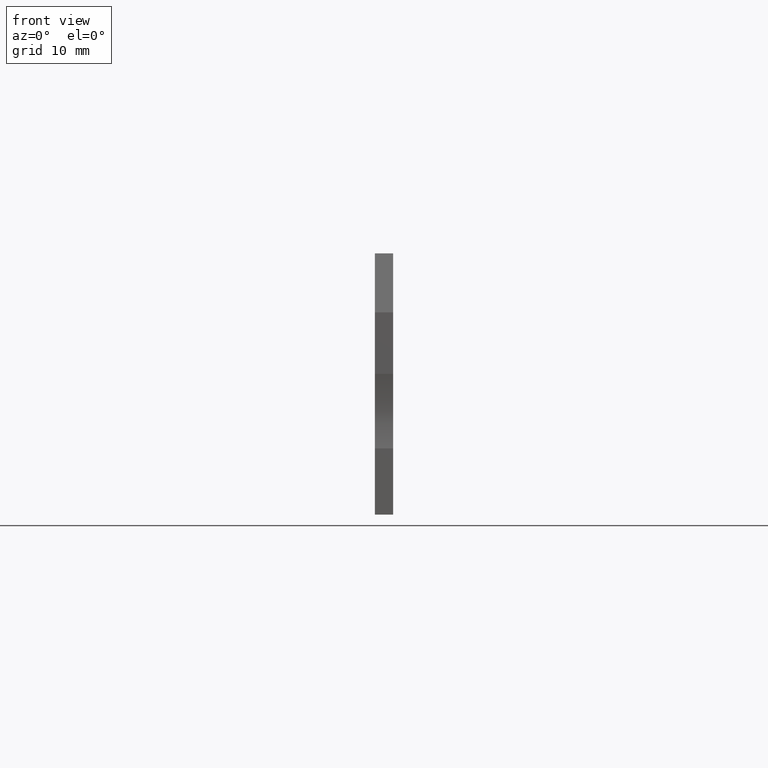
[diagram: clean part render]
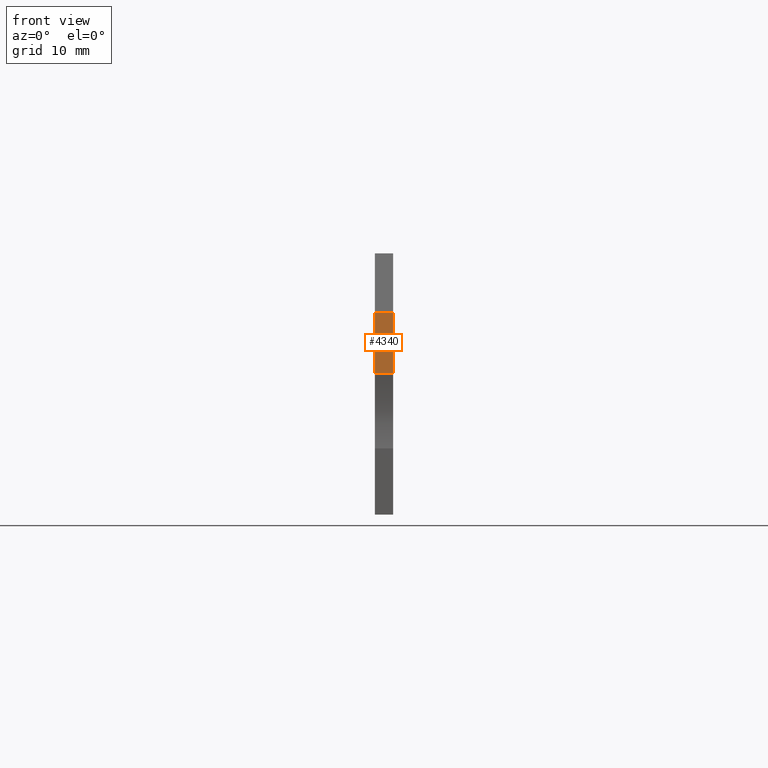
[diagram: same view with one face highlighted and labeled with its STEP entity id]
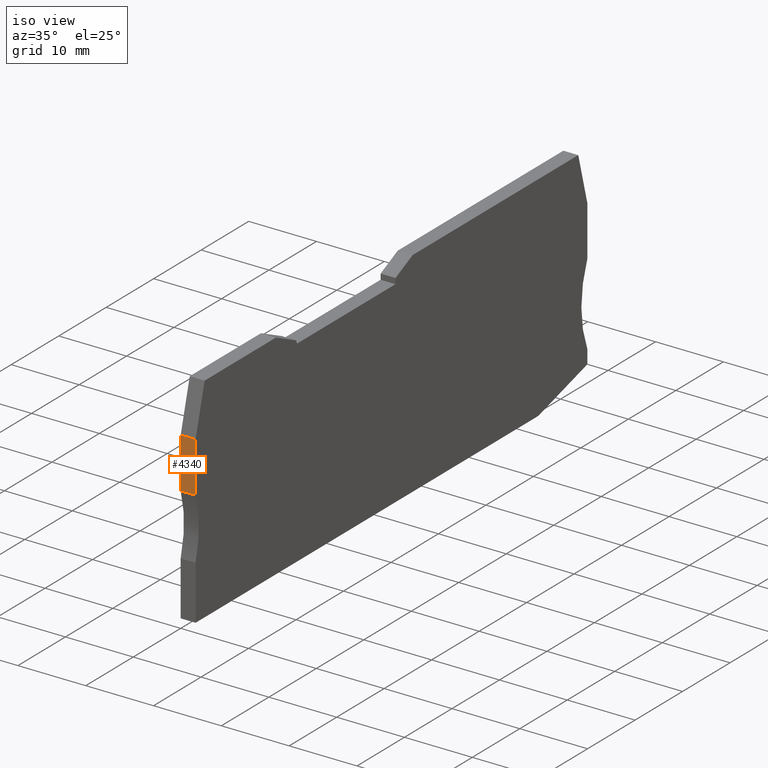
[diagram: same view with one face highlighted and labeled with its STEP entity id]
A machine part, front view. The second image highlights one B-rep face of the part: STEP entity #4340.
A second angle (iso view) of the same face is appended — the face is thin or edge-on in the first view.
In plain terms, the highlighted planar face has unit normal (0, -1, 0).
Its self-contained STEP definition (entity closure, byte-faithful):
#1170=CARTESIAN_POINT('',(8.72968082605227,-13.7655444566222,
-2.22044604925031E-14));
#1180=VERTEX_POINT('',#1170);
#1210=CARTESIAN_POINT('',(8.72968082604465,-33.886127,
-2.22044604925031E-14));
#1220=DIRECTION('',(-3.78848562751832E-13,-1.,0.));
#1230=VECTOR('',#1220,1.);
#1240=LINE('',#1210,#1230);
#1250=CARTESIAN_POINT('',(8.72968082604945,-21.2000000000586,
-2.22044604925031E-14));
#1260=VERTEX_POINT('',#1250);
#1270=EDGE_CURVE('',#1180,#1260,#1240,.T.);
#1740=CARTESIAN_POINT('',(8.72968082604945,-21.2000000000586,
2.19999999999998));
#1750=VERTEX_POINT('',#1740);
#1780=CARTESIAN_POINT('',(8.72968082604465,-33.886127,2.19999999999998))
;
#1790=DIRECTION('',(-3.78848562751832E-13,-1.,0.));
#1800=VECTOR('',#1790,1.);
#1810=LINE('',#1780,#1800);
#1820=CARTESIAN_POINT('',(8.72968082605227,-13.7655444566222,
2.19999999999998));
#1830=VERTEX_POINT('',#1820);
#1840=EDGE_CURVE('',#1830,#1750,#1810,.T.);
#4130=CARTESIAN_POINT('',(8.72968082605225,-13.831370705416,
2.19999999999998));
#4140=DIRECTION('',(-1.,3.78848562751832E-13,0.));
#4150=DIRECTION('',(3.78848562751832E-13,1.,0.));
#4160=AXIS2_PLACEMENT_3D('',#4130,#4140,#4150);
#4170=PLANE('',#4160);
#4180=ORIENTED_EDGE('',*,*,#1840,.F.);
#4190=CARTESIAN_POINT('',(8.72968082604945,-21.2000000000586,
2.19999999999998));
#4200=DIRECTION('',(0.,0.,1.));
#4210=VECTOR('',#4200,1.);
#4220=LINE('',#4190,#4210);
#4230=EDGE_CURVE('',#1260,#1750,#4220,.T.);
#4240=ORIENTED_EDGE('',*,*,#4230,.T.);
#4250=ORIENTED_EDGE('',*,*,#1270,.T.);
#4260=CARTESIAN_POINT('',(8.72968082605227,-13.7655444566222,
-2.1316282072803E-14));
#4270=DIRECTION('',(0.,0.,1.));
#4280=VECTOR('',#4270,1.);
#4290=LINE('',#4260,#4280);
#4300=EDGE_CURVE('',#1180,#1830,#4290,.T.);
#4310=ORIENTED_EDGE('',*,*,#4300,.F.);
#4320=EDGE_LOOP('',(#4310,#4250,#4240,#4180));
#4330=FACE_OUTER_BOUND('',#4320,.T.);
#4340=ADVANCED_FACE('',(#4330),#4170,.T.);